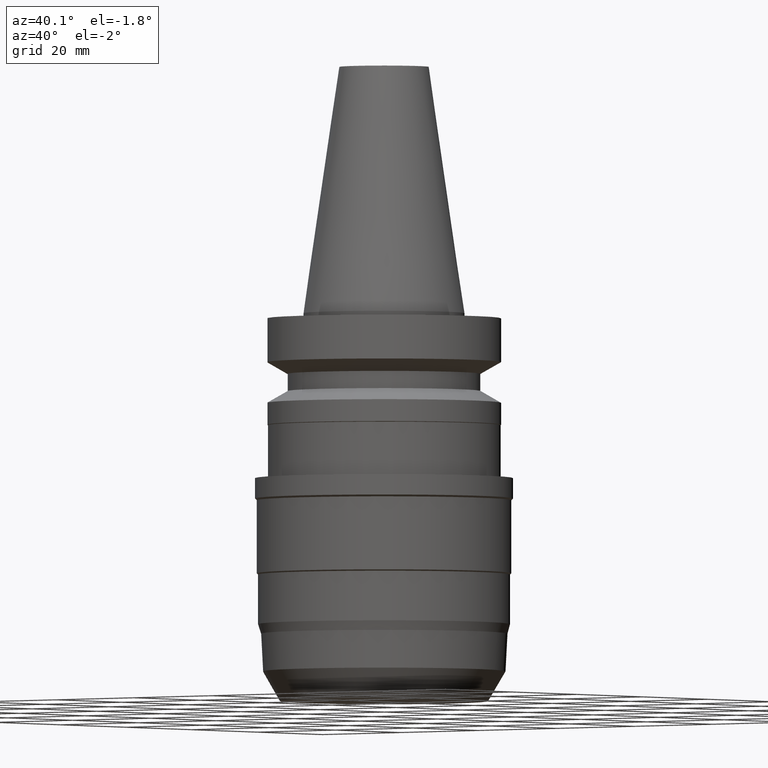
[diagram: clean part render]
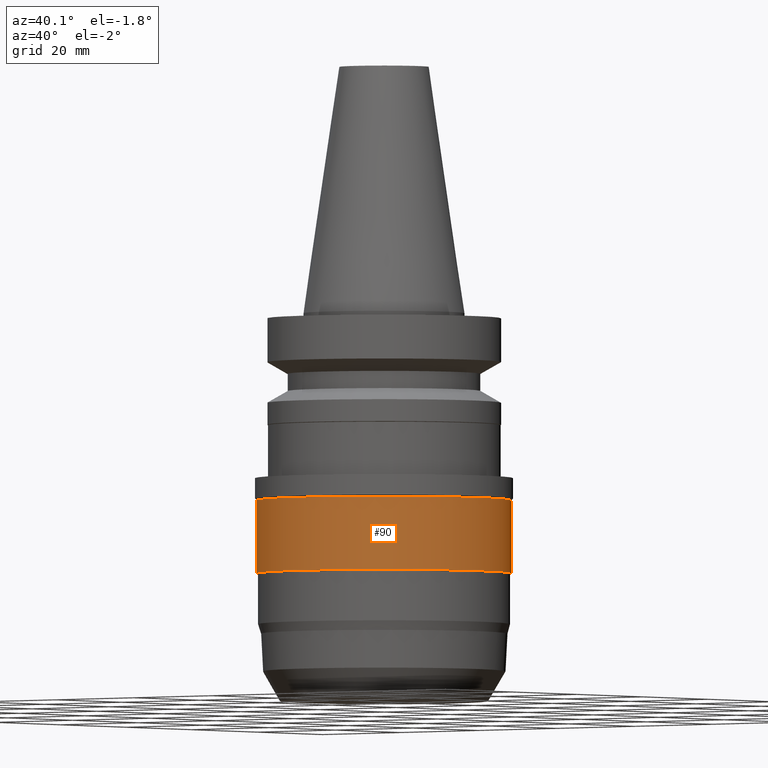
[diagram: same view with one face highlighted and labeled with its STEP entity id]
A machine part, auxiliary view. The second image highlights one B-rep face of the part: STEP entity #90.
In plain terms, the highlighted cylindrical surface (bore or boss wall) has radius 25 mm, axis along (0, 0, -1).
Its self-contained STEP definition (entity closure, byte-faithful):
#90=ADVANCED_FACE('Unnamed[1]',(#226,#227),#228,.T.);
#132=EDGE_CURVE('Unnamed[1]',#294,#294,#295,.T.);
#149=EDGE_CURVE('Unnamed[1]',#319,#319,#320,.T.);
#226=FACE_BOUND('',#408,.T.);
#227=FACE_BOUND('',#409,.T.);
#228=CYLINDRICAL_SURFACE('',#410,24.9999999999997);
#294=VERTEX_POINT('',#493);
#295=CIRCLE('',#494,24.9999999999996);
#319=VERTEX_POINT('',#524);
#320=CIRCLE('',#525,24.9999999999998);
#408=EDGE_LOOP('',(#610));
#409=EDGE_LOOP('',(#611));
#410=AXIS2_PLACEMENT_3D('',#612,#613,#614);
#493=CARTESIAN_POINT('',(2.2502884934333E-015,24.9999999999996,-36.7500000000006));
#494=AXIS2_PLACEMENT_3D('',#687,#688,#689);
#524=CARTESIAN_POINT('',(3.12897257182148E-015,24.9999999999998,-51.1));
#525=AXIS2_PLACEMENT_3D('',#712,#713,#714);
#610=ORIENTED_EDGE('',*,*,#149,.F.);
#611=ORIENTED_EDGE('',*,*,#132,.T.);
#612=CARTESIAN_POINT('',(2.68963053262739E-015,5.37926106525478E-015,-43.9250000000003));
#613=DIRECTION('',(6.12323399573676E-017,1.22464679914735E-016,-1.0));
#614=DIRECTION('',(-1.23259516440783E-032,1.0,1.22464679914735E-016));
#687=CARTESIAN_POINT('',(2.2502884934333E-015,4.50057698686659E-015,-36.7500000000006));
#688=DIRECTION('',(6.12323399573677E-017,1.22464679914735E-016,-1.0));
#689=DIRECTION('',(-1.23259516440783E-032,1.0,1.22464679914735E-016));
#712=CARTESIAN_POINT('',(3.12897257182148E-015,6.25794514364297E-015,-51.1));
#713=DIRECTION('',(6.12323399573677E-017,1.22464679914735E-016,-1.0));
#714=DIRECTION('',(-1.23259516440783E-032,1.0,1.22464679914735E-016));